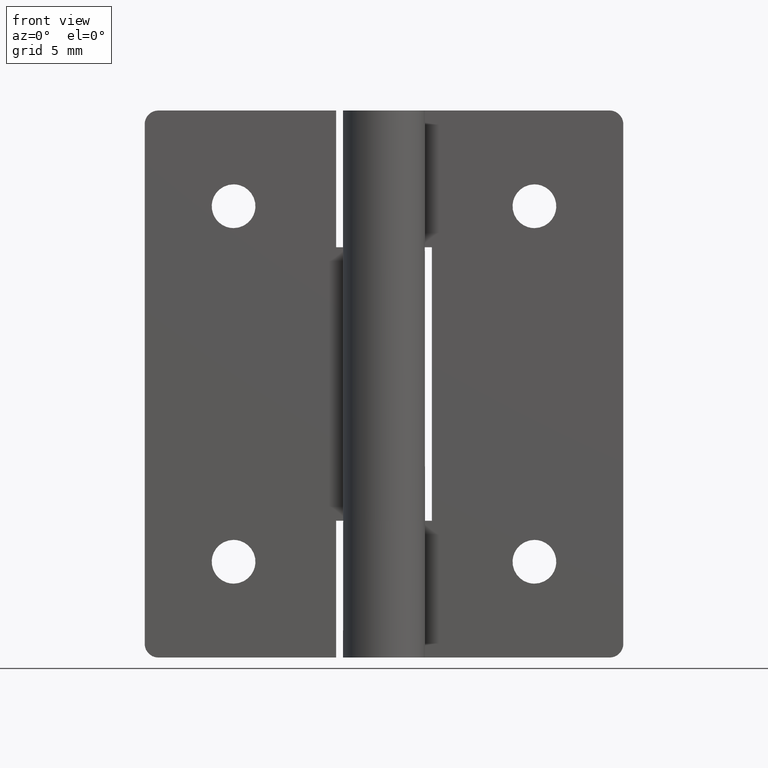
[diagram: clean part render]
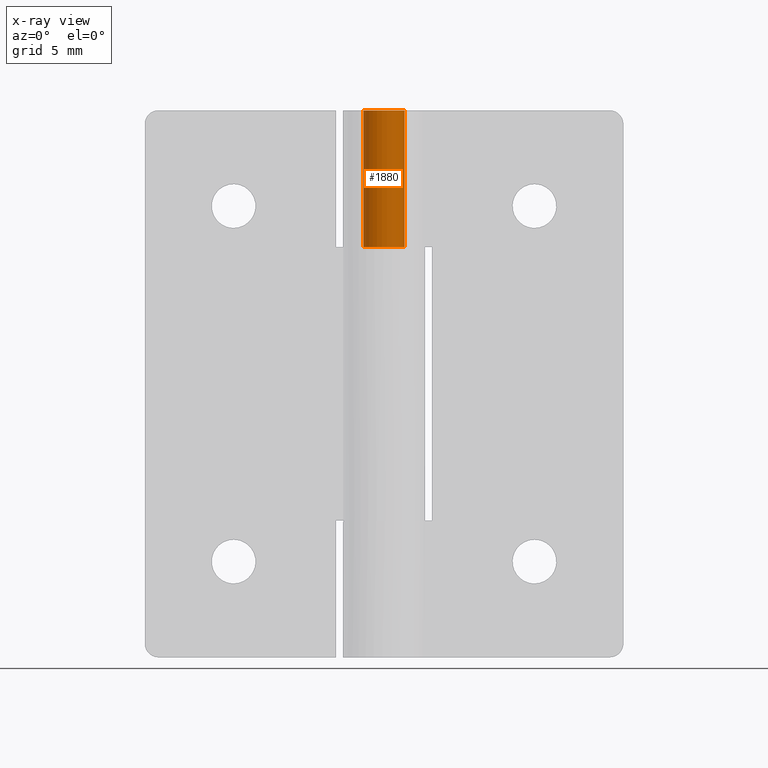
[diagram: x-ray — body ghosted, one internal face saturated and labeled with its STEP entity id]
A machine part, front view, then the same camera in x-ray: the body is ghosted and one INTERNAL B-rep face — a face not visible from any outside direction — is saturated and labeled: STEP entity #1880.
In plain terms, the highlighted face is a freeform B-spline surface patch.
Its self-contained STEP definition (entity closure, byte-faithful):
#1482=CARTESIAN_POINT('',(0.0,1.500000000000000,29.999992000000049));
#1483=VERTEX_POINT('',#1482);
#1489=CARTESIAN_POINT('',(1.313154598666890,0.725000000000000,29.999992000000049));
#1490=VERTEX_POINT('',#1489);
#1491=CARTESIAN_POINT('',(1.313154598666890,0.725000000000000,29.999992000000049));
#1492=CARTESIAN_POINT('',(1.866715792252885,-0.277636451035838,29.999992000000052));
#1493=CARTESIAN_POINT('',(1.045325295443045,-1.075776476182162,29.999992000000049));
#1494=CARTESIAN_POINT('',(0.223934798633207,-1.873916501328486,29.999992000000052));
#1495=CARTESIAN_POINT('',(-0.762397534098844,-1.291801068276382,29.999992000000049));
#1496=CARTESIAN_POINT('',(-1.748729866830896,-0.709685635224277,29.999992000000052));
#1497=CARTESIAN_POINT('',(-1.447014444021651,0.395157182387861,29.999992000000049));
#1498=CARTESIAN_POINT('',(-1.145299021212405,1.500000000000000,29.999992000000052));
#1499=CARTESIAN_POINT('',(0.0,1.500000000000000,29.999992000000049));
#1507=(BOUNDED_CURVE()B_SPLINE_CURVE(2,(#1491,#1492,#1493,#1494,#1495,#1496,#1497,#1498,#1499),.UNSPECIFIED.,.F.,.U.)B_SPLINE_CURVE_WITH_KNOTS((3,2,2,2,3),(0.0,0.250000000000000,0.500000000000000,0.750000000000000,1.0),.UNSPECIFIED.)CURVE()GEOMETRIC_REPRESENTATION_ITEM()RATIONAL_B_SPLINE_CURVE((1.0,0.794807562115481,1.0,0.794807562115481,1.0,0.794807562115481,1.0,0.794807562115481,1.0))REPRESENTATION_ITEM(''));
#1508=EDGE_CURVE('',#1490,#1483,#1507,.T.);
#1726=CARTESIAN_POINT('',(0.0,1.500000000000000,40.0));
#1727=VERTEX_POINT('',#1726);
#1762=CARTESIAN_POINT('',(1.313154598666890,0.725000000000000,40.0));
#1763=VERTEX_POINT('',#1762);
#1769=CARTESIAN_POINT('',(1.313154598666890,0.725000000000000,40.0));
#1770=CARTESIAN_POINT('',(1.866715792252885,-0.277636451035838,40.000000000000007));
#1771=CARTESIAN_POINT('',(1.045325295443045,-1.075776476182162,40.0));
#1772=CARTESIAN_POINT('',(0.223934798633207,-1.873916501328486,40.000000000000007));
#1773=CARTESIAN_POINT('',(-0.762397534098844,-1.291801068276382,40.0));
#1774=CARTESIAN_POINT('',(-1.748729866830896,-0.709685635224277,40.000000000000007));
#1775=CARTESIAN_POINT('',(-1.447014444021651,0.395157182387861,40.0));
#1776=CARTESIAN_POINT('',(-1.145299021212405,1.500000000000000,40.000000000000007));
#1777=CARTESIAN_POINT('',(0.0,1.500000000000000,40.0));
#1785=(BOUNDED_CURVE()B_SPLINE_CURVE(2,(#1769,#1770,#1771,#1772,#1773,#1774,#1775,#1776,#1777),.UNSPECIFIED.,.F.,.U.)B_SPLINE_CURVE_WITH_KNOTS((3,2,2,2,3),(0.0,0.250000000000000,0.500000000000000,0.750000000000000,1.0),.UNSPECIFIED.)CURVE()GEOMETRIC_REPRESENTATION_ITEM()RATIONAL_B_SPLINE_CURVE((1.0,0.794807562115481,1.0,0.794807562115481,1.0,0.794807562115481,1.0,0.794807562115481,1.0))REPRESENTATION_ITEM(''));
#1786=EDGE_CURVE('',#1763,#1727,#1785,.T.);
#1834=CARTESIAN_POINT('',(1.313154598666890,0.725000000000000,40.0));
#1835=CARTESIAN_POINT('',(1.313154598666890,0.725000000000000,29.999992000000049));
#1836=QUASI_UNIFORM_CURVE('',1,(#1834,#1835),.UNSPECIFIED.,.F.,.U.);
#1837=EDGE_CURVE('',#1763,#1490,#1836,.T.);
#1848=CARTESIAN_POINT('',(0.013089803247560,1.499942884596257,40.250000200000009));
#1849=CARTESIAN_POINT('',(0.013089803247560,1.499942884596257,29.743741795000052));
#1850=CARTESIAN_POINT('',(-1.795740308696874,1.515728305839138,40.250000200000002));
#1851=CARTESIAN_POINT('',(-1.795740308696874,1.515728305839138,29.743741795000052));
#1852=CARTESIAN_POINT('',(-1.476447697697894,-0.264768192883109,40.250000200000009));
#1853=CARTESIAN_POINT('',(-1.476447697697894,-0.264768192883109,29.743741795000052));
#1854=CARTESIAN_POINT('',(-1.157155086698915,-2.045264691605356,40.250000200000002));
#1855=CARTESIAN_POINT('',(-1.157155086698915,-2.045264691605356,29.743741795000052));
#1856=CARTESIAN_POINT('',(0.533476142722314,-1.401928388023483,40.250000200000009));
#1857=CARTESIAN_POINT('',(0.533476142722314,-1.401928388023483,29.743741795000052));
#1858=CARTESIAN_POINT('',(2.224107372143544,-0.758592084441610,40.250000200000002));
#1859=CARTESIAN_POINT('',(2.224107372143544,-0.758592084441610,29.743741795000052));
#1860=CARTESIAN_POINT('',(1.278960246531139,0.783747847073922,40.250000200000009));
#1861=CARTESIAN_POINT('',(1.278960246531139,0.783747847073922,29.743741795000052));
#1869=(BOUNDED_SURFACE()B_SPLINE_SURFACE(1,2,((#1848,#1850,#1852,#1854,#1856,#1858,#1860),(#1849,#1851,#1853,#1855,#1857,#1859,#1861)),.UNSPECIFIED.,.F.,.F.,.U.)B_SPLINE_SURFACE_WITH_KNOTS((2,2),(3,2,2,3),(0.0,10.506258404999970),(0.0,2.819123256080202,5.638246512160404,8.457369768240607),.UNSPECIFIED.)GEOMETRIC_REPRESENTATION_ITEM()RATIONAL_B_SPLINE_SURFACE(((1.0,0.638320090924328,1.0,0.638320090924328,1.0,0.638320090924328,1.0),(1.0,0.638320090924328,1.0,0.638320090924328,1.0,0.638320090924328,1.0)))REPRESENTATION_ITEM('')SURFACE());
#1870=ORIENTED_EDGE('',*,*,#1837,.T.);
#1871=ORIENTED_EDGE('',*,*,#1508,.T.);
#1872=CARTESIAN_POINT('',(0.0,1.500000000000000,40.0));
#1873=CARTESIAN_POINT('',(0.0,1.500000000000000,29.999992000000049));
#1874=QUASI_UNIFORM_CURVE('',1,(#1872,#1873),.UNSPECIFIED.,.F.,.U.);
#1875=EDGE_CURVE('',#1727,#1483,#1874,.T.);
#1876=ORIENTED_EDGE('',*,*,#1875,.F.);
#1877=ORIENTED_EDGE('',*,*,#1786,.F.);
#1878=EDGE_LOOP('',(#1870,#1871,#1876,#1877));
#1879=FACE_OUTER_BOUND('',#1878,.T.);
#1880=ADVANCED_FACE('',(#1879),#1869,.F.);